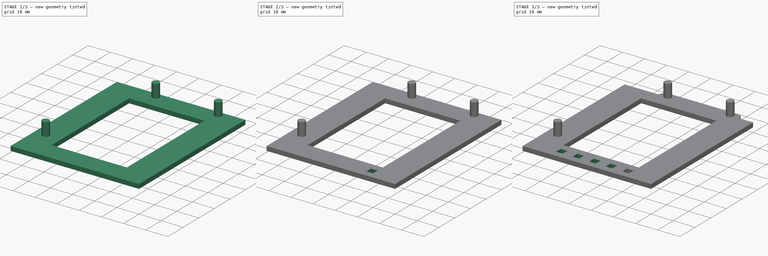
[diagram: build sequence overview — one tinted view per stage of 3, left to right]
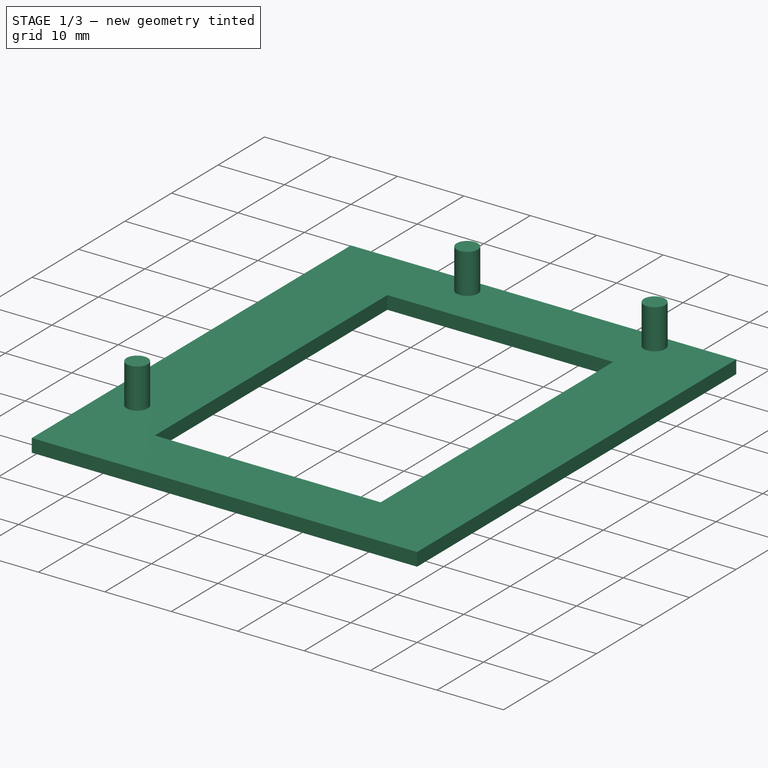
[diagram: stage 1 of 3 — iso view after this stage's code; geometry added in this stage tinted green]
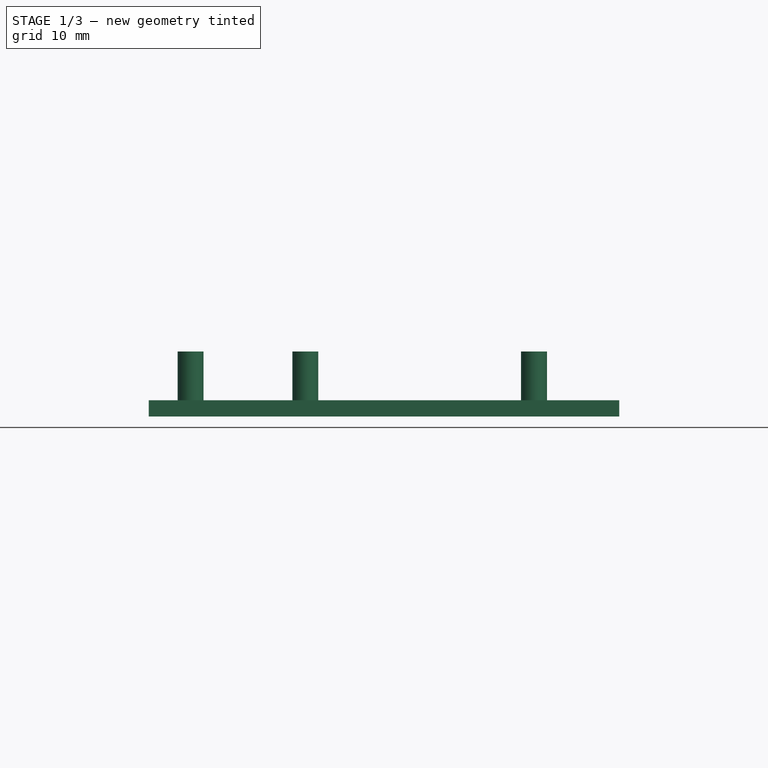
[diagram: stage 1 of 3 — front view after this stage's code; geometry added in this stage tinted green]
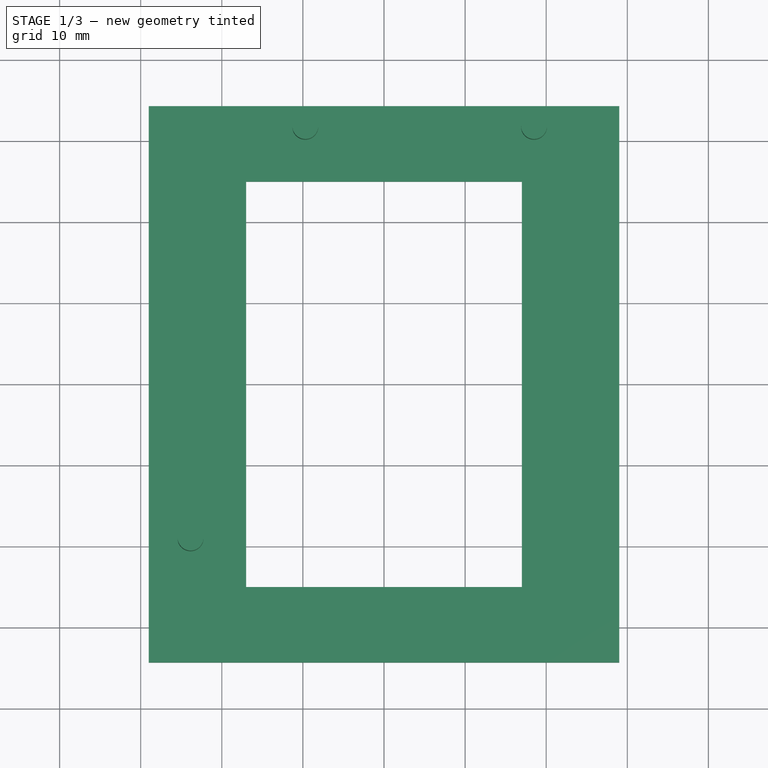
[diagram: stage 1 of 3 — top view after this stage's code; geometry added in this stage tinted green]
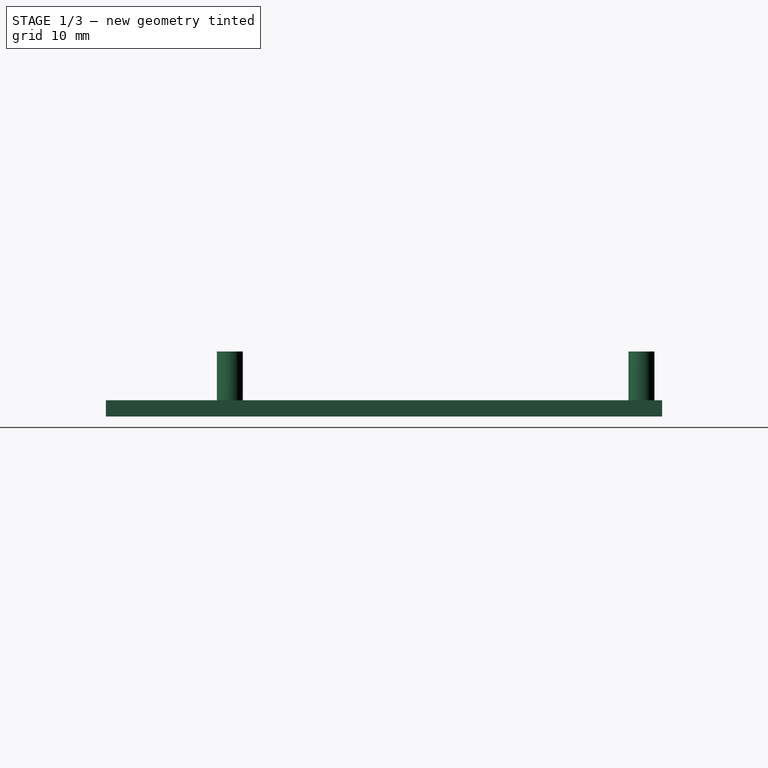
[diagram: stage 1 of 3 — right view after this stage's code; geometry added in this stage tinted green]
FCSTD DOCUMENT  (FreeCAD 0.16R4928 (Git))
Label: weather_station_holder_vetical_v2
License: CreativeCommons Attribution-ShareAlike
LicenseURL: http://creativecommons.org/licenses/by-sa/4.0/
objects: Sketcher::SketchObject×4, PartDesign::Pad×2, PartDesign::Pocket×2, PartDesign::LinearPattern×1
note: 13 computed .brp shape members not serialized (recipe doc carries the construction recipe); baked Part::Feature solids carry a one-line shape summary decoded from their .brp

FEATURE [Sketcher::SketchObject] Sketch
  sketch-geometry (8):
    g0: LineSegment StartX=-29 StartY=34.3 StartZ=0 EndX=29 EndY=34.3 EndZ=0
    g1: LineSegment StartX=29 StartY=34.3 StartZ=0 EndX=29 EndY=-34.3 EndZ=0
    g2: LineSegment StartX=29 StartY=-34.3 StartZ=0 EndX=-29 EndY=-34.3 EndZ=0
    g3: LineSegment StartX=-29 StartY=-34.3 StartZ=0 EndX=-29 EndY=34.3 EndZ=0
    g4: LineSegment StartX=-17 StartY=25 StartZ=0 EndX=17 EndY=25 EndZ=0
    g5: LineSegment StartX=17 StartY=25 StartZ=0 EndX=17 EndY=-25 EndZ=0
    g6: LineSegment StartX=17 StartY=-25 StartZ=0 EndX=-17 EndY=-25 EndZ=0
    g7: LineSegment StartX=-17 StartY=-25 StartZ=0 EndX=-17 EndY=25 EndZ=0
  constraints (22):
    c: Coincident(g0,g1)
    c: Coincident(g1,g2)
    c: Coincident(g2,g3)
    c: Coincident(g3,g0)
    c: Horizontal(g0)
    c: Horizontal(g2)
    c: Vertical(g1)
    c: Vertical(g3)
    c: Symmetric(g0,g1,g-1)
    c: DistanceX(g2) = -58
    c: DistanceY(g1) = -68.6
    c: Coincident(g4,g5)
    c: Coincident(g5,g6)
    c: Coincident(g6,g7)
    c: Coincident(g7,g4)
    c: Horizontal(g4)
    c: Horizontal(g6)
    c: Vertical(g5)
    c: Vertical(g7)
    c: Symmetric(g5,g4,g-1)
    c: DistanceX(g4) = 34
    c: DistanceY(g5) = -50
FEATURE [PartDesign::Pad] Pad
  Length = 2
  Length2 = 100
  Midplane = true
  Sketch = -> Sketch
  Type = 0
FEATURE [Sketcher::SketchObject] Sketch001
  ExternalGeometry = -> [Pad]
  Placement = pos=(0,0,1) rot=(0,0,1;0rad)
  Support = -> Pad [Face10]
  sketch-geometry (5):
    g0: Circle CenterX=-9.7 CenterY=31.75 CenterZ=0 NormalX=0 NormalY=0 NormalZ=1 Radius=1.6
    g1: Circle CenterX=18.5 CenterY=31.75 CenterZ=0 NormalX=0 NormalY=0 NormalZ=1 Radius=1.6
    g2: Circle CenterX=-23.85 CenterY=-19 CenterZ=0 NormalX=0 NormalY=0 NormalZ=1 Radius=1.6
    g3: LineSegment [constr] StartX=18.5 StartY=31.75 StartZ=0 EndX=-9.7 EndY=31.75 EndZ=0
    g4: LineSegment [constr] StartX=18.5 StartY=31.75 StartZ=0 EndX=20.1 EndY=31.75 EndZ=0
  constraints (14):
    c: Coincident(g3,g1)
    c: Coincident(g3,g0)
    c: Horizontal(g3)
    c: Equal(g0,g1)
    c: Equal(g1,g2)
    c: Radius(g1) = 1.6
    c: DistanceX(g3) = -28.2
    c: DistanceY(g-3,g0) = -2.55
    c: DistanceY(g2,g-4) = -15.3
    c: Coincident(g4,g1)
    c: PointOnObject(g4,g1)
    c: Horizontal(g4)
    c: DistanceX(g4,g-4) = 8.9
    c: DistanceX(g2,g-4) = 52.85
FEATURE [PartDesign::Pad] Pad001
  Length = 6
  Length2 = 100
  Sketch = -> Sketch001
  Type = 0
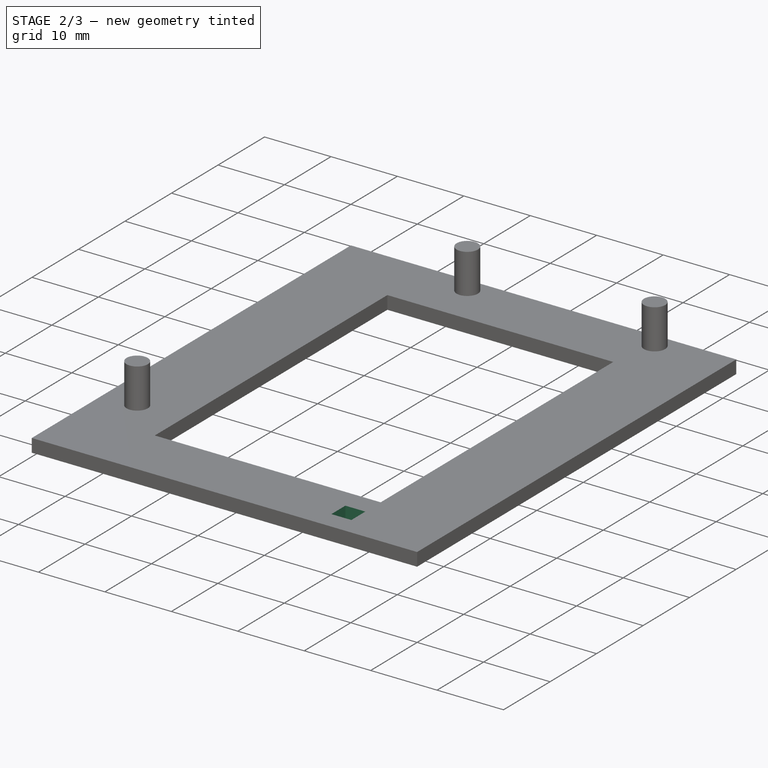
[diagram: stage 2 of 3 — iso view after this stage's code; geometry added in this stage tinted green]
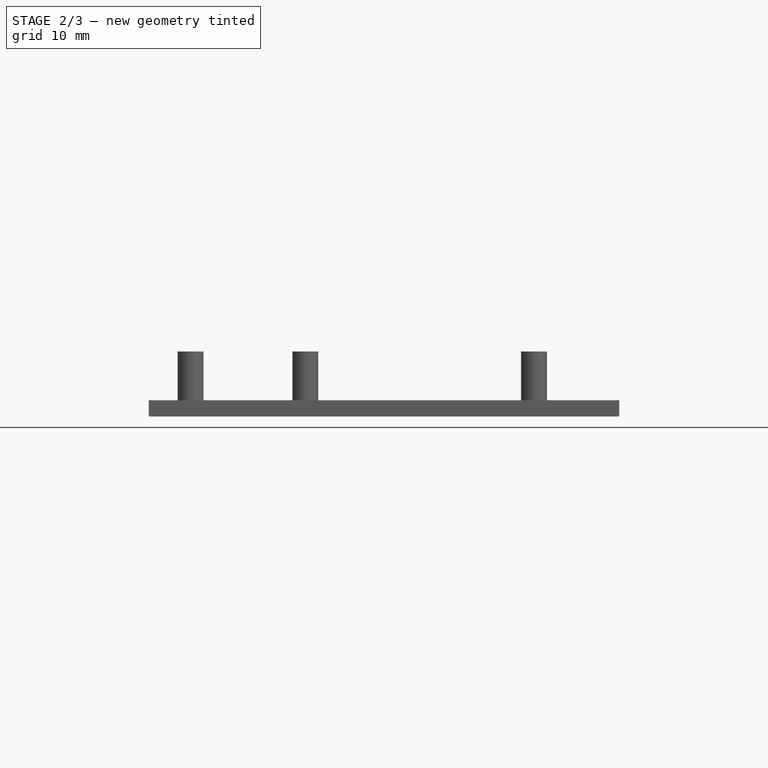
[diagram: stage 2 of 3 — front view after this stage's code; geometry added in this stage tinted green]
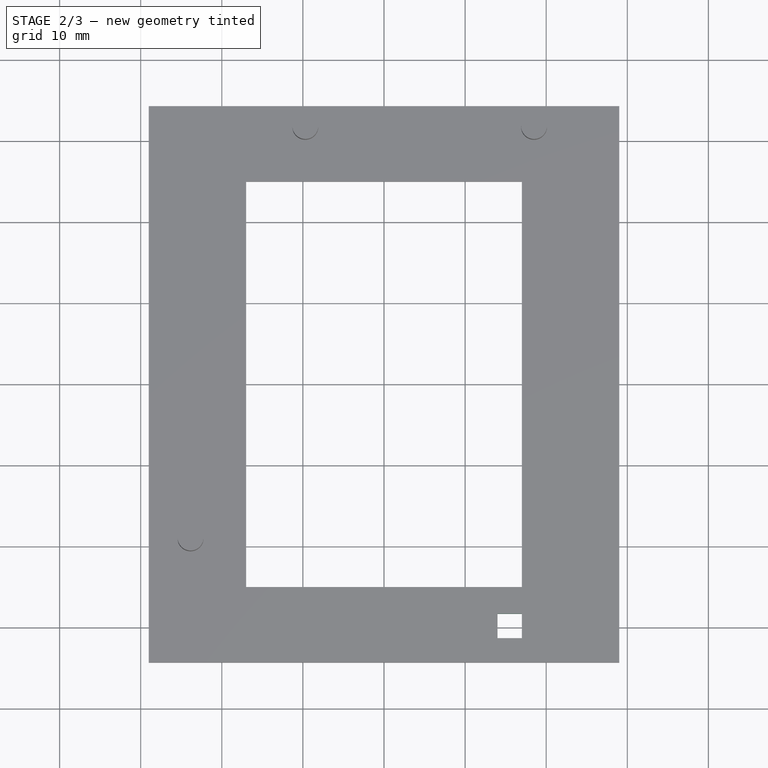
[diagram: stage 2 of 3 — top view after this stage's code; geometry added in this stage tinted green]
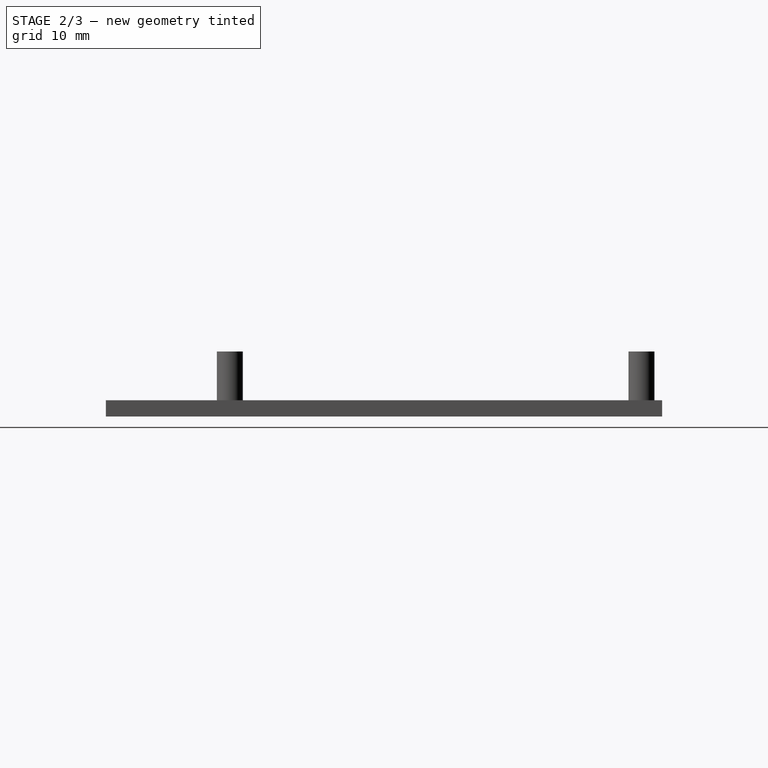
[diagram: stage 2 of 3 — right view after this stage's code; geometry added in this stage tinted green]
FEATURE [Sketcher::SketchObject] Sketch002
  ExternalGeometry = -> [Pad001]
  Placement = pos=(0,0,1) rot=(0,0,1;0rad)
  Support = -> Pad001 [Face5]
  sketch-geometry (4):
    g0: LineSegment StartX=14 StartY=-28.3 StartZ=0 EndX=17 EndY=-28.3 EndZ=0
    g1: LineSegment StartX=17 StartY=-28.3 StartZ=0 EndX=17 EndY=-31.3 EndZ=0
    g2: LineSegment StartX=17 StartY=-31.3 StartZ=0 EndX=14 EndY=-31.3 EndZ=0
    g3: LineSegment StartX=14 StartY=-31.3 StartZ=0 EndX=14 EndY=-28.3 EndZ=0
  constraints (14):
    c: Coincident(g0,g1)
    c: Coincident(g1,g2)
    c: Coincident(g2,g3)
    c: Coincident(g3,g0)
    c: Horizontal(g0)
    c: Horizontal(g2)
    c: Vertical(g1)
    c: Vertical(g3)
    c: Equal(g0,g1)
    c: DistanceX(g1,g-3) = 12
    c: DistanceY(g1,g-3) = -3
    c: DistanceY(g3) = 3
    c: DistanceY(g1,g-4) = -3
    c: DistanceX(g1,g-4) = 12
FEATURE [PartDesign::Pocket] Pocket
  Length = 5
  Sketch = -> Sketch002
  Type = 0
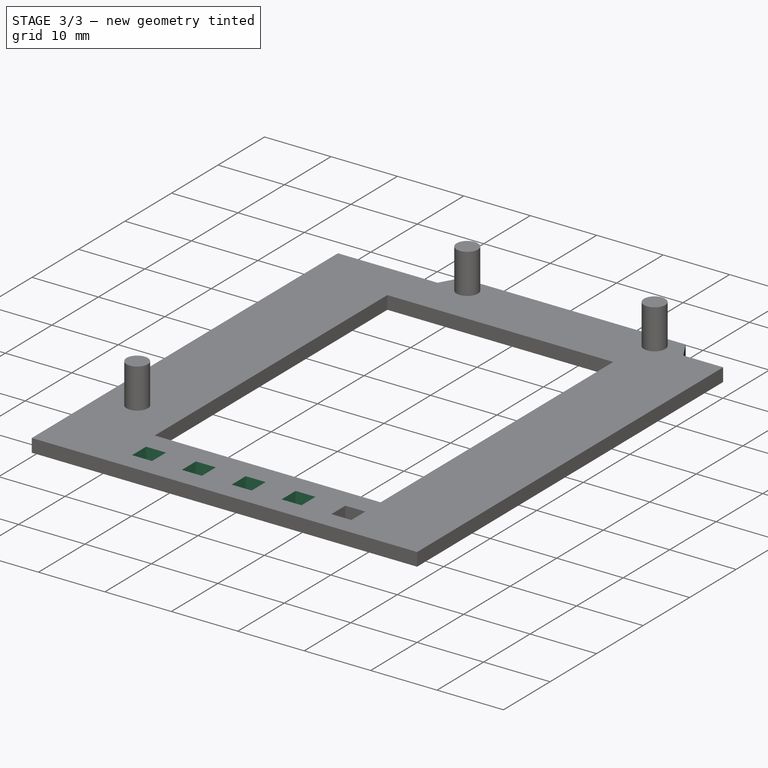
[diagram: stage 3 of 3 — iso view after this stage's code; geometry added in this stage tinted green]
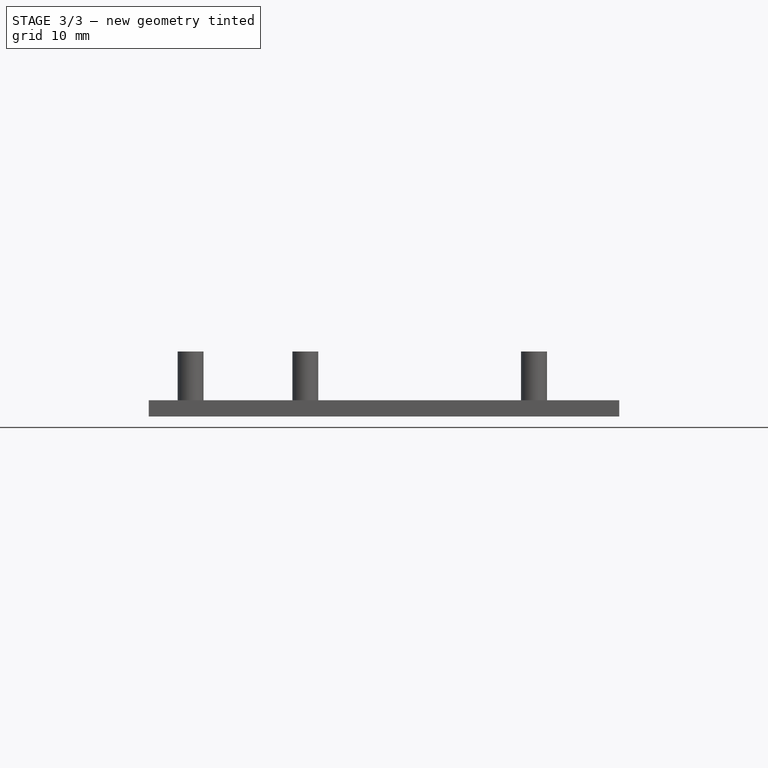
[diagram: stage 3 of 3 — front view after this stage's code; geometry added in this stage tinted green]
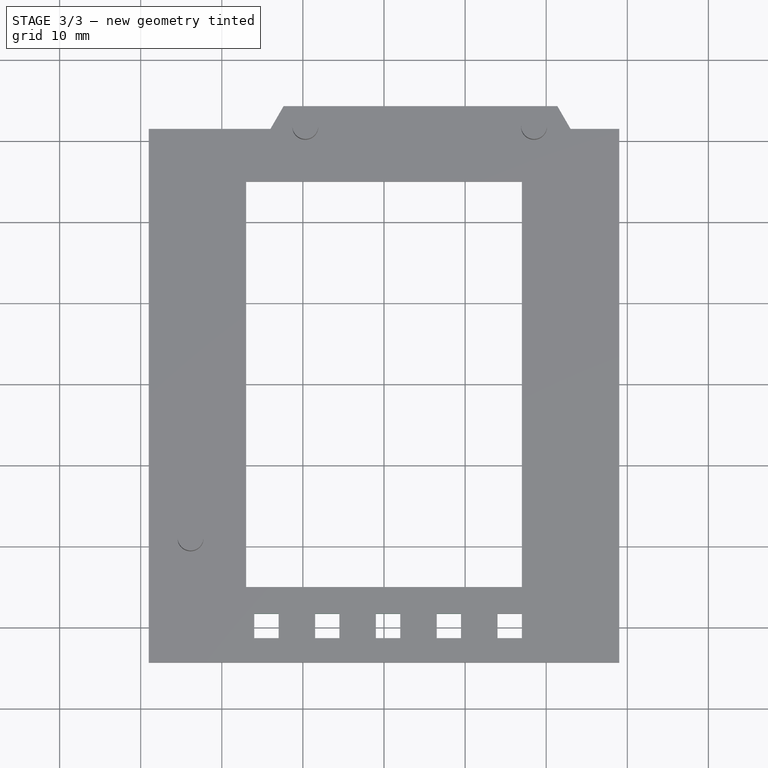
[diagram: stage 3 of 3 — top view after this stage's code; geometry added in this stage tinted green]
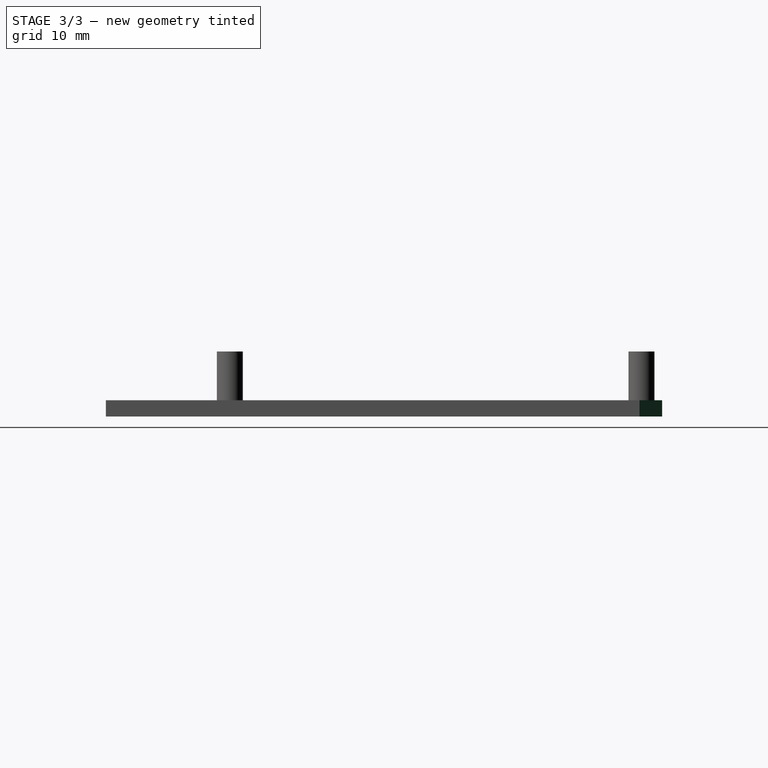
[diagram: stage 3 of 3 — right view after this stage's code; geometry added in this stage tinted green]
FEATURE [PartDesign::LinearPattern] LinearPattern
  Direction = -> Pocket [Face3]
  Length = 30
  Occurrences = 5
  Originals = -> [Pocket]
  Reversed = true
FEATURE [Sketcher::SketchObject] Sketch003
  ExternalGeometry = -> [LinearPattern]
  Placement = pos=(0,0,1) rot=(0,0,1;0rad)
  Support = -> LinearPattern [Face5]
  sketch-geometry (9):
    g0: LineSegment StartX=-29 StartY=31.5 StartZ=0 EndX=-14 EndY=31.5 EndZ=0
    g1: LineSegment StartX=-14 StartY=31.5 StartZ=0 EndX=-12.3834 EndY=34.3 EndZ=0
    g2: LineSegment StartX=-12.3834 StartY=34.3 StartZ=0 EndX=-29 EndY=34.3 EndZ=0
    g3: LineSegment StartX=-29 StartY=34.3 StartZ=0 EndX=-29 EndY=31.5 EndZ=0
    g4: LineSegment StartX=21.3834 StartY=34.3 StartZ=0 EndX=23 EndY=31.5 EndZ=0
    g5: LineSegment StartX=23 StartY=31.5 StartZ=0 EndX=29 EndY=31.5 EndZ=0
    g6: LineSegment StartX=29 StartY=31.5 StartZ=0 EndX=29 EndY=34.3 EndZ=0
    g7: LineSegment StartX=29 StartY=34.3 StartZ=0 EndX=21.3834 EndY=34.3 EndZ=0
    g8: LineSegment [constr] StartX=23 StartY=31.5 StartZ=0 EndX=-14 EndY=31.5 EndZ=0
  constraints (26):
    c: Horizontal(g0)
    c: Coincident(g0,g1)
    c: Coincident(g1,g2)
    c: Horizontal(g2)
    c: Coincident(g2,g3)
    c: Coincident(g3,g0)
    c: Vertical(g3)
    c: Coincident(g4,g5)
    c: Horizontal(g5)
    c: Coincident(g5,g6)
    c: Vertical(g6)
    c: Coincident(g6,g7)
    c: Coincident(g7,g4)
    c: Horizontal(g7)
    c: Coincident(g8,g0)
    c: Horizontal(g8)
    c: Coincident(g8,g4)
    c: Angle(g1,g0) = 2.0944
    c: Angle(g5,g4) = 2.0944
    c: PointOnObject(g0,g-3)
    c: DistanceX(g0) = 15
    c: Coincident(g2,g-3)
    c: PointOnObject(g5,g-4)
    c: Coincident(g-4,g6)
    c: DistanceX(g5) = 6
    c: DistanceY(g2,g0) = -2.8
FEATURE [PartDesign::Pocket] Pocket001
  Length = 5
  Sketch = -> Sketch003
  Type = 0
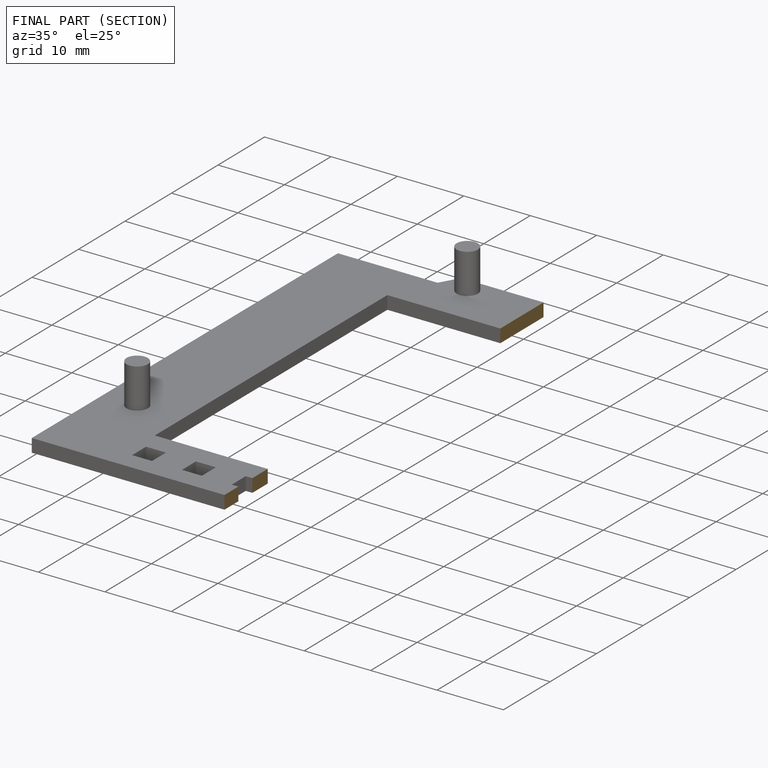
[diagram: finished part — half-section view (interior)]
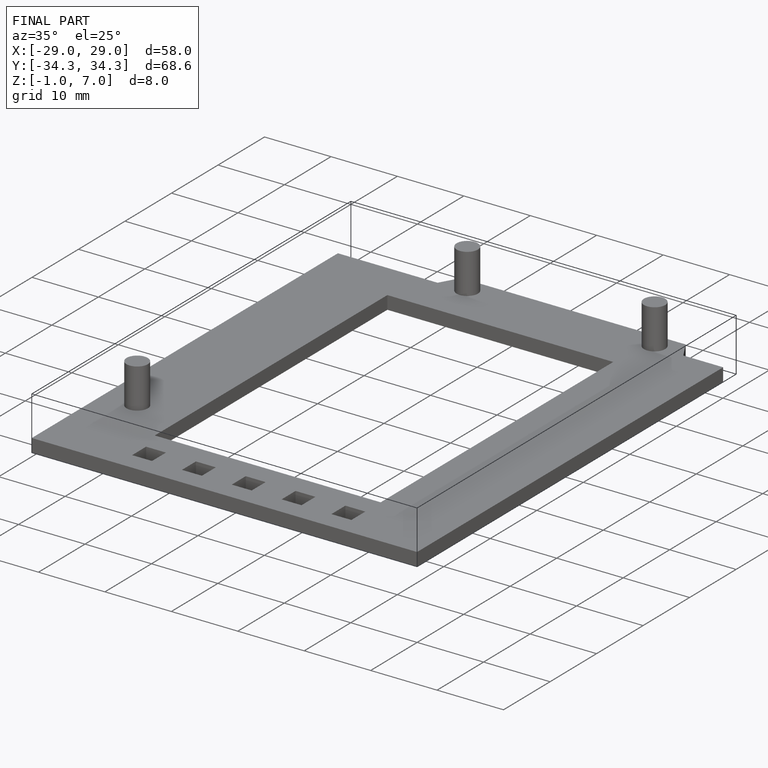
[diagram: finished part — iso view with bounding-box wireframe]
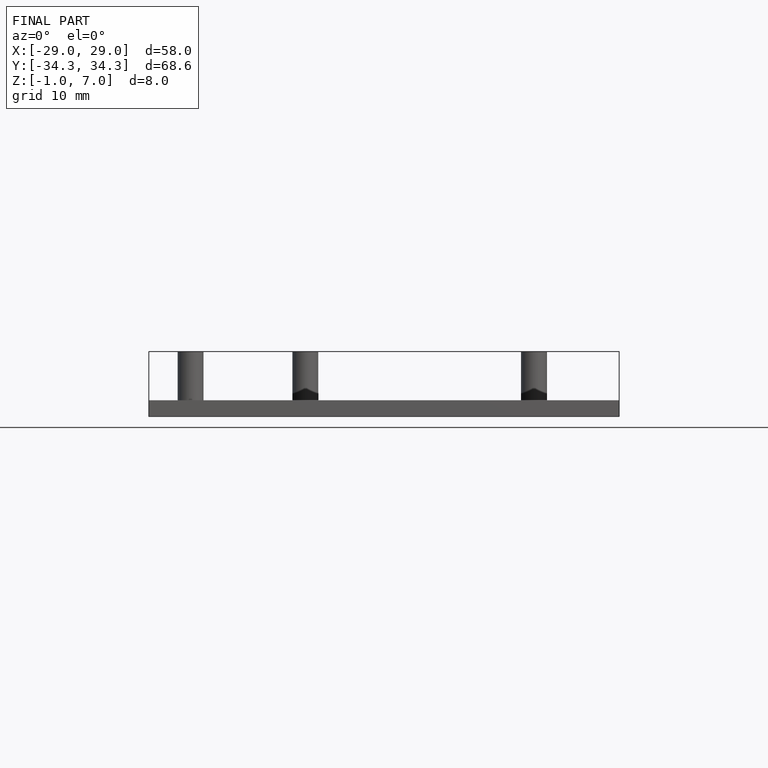
[diagram: finished part — front view with bounding-box wireframe]
